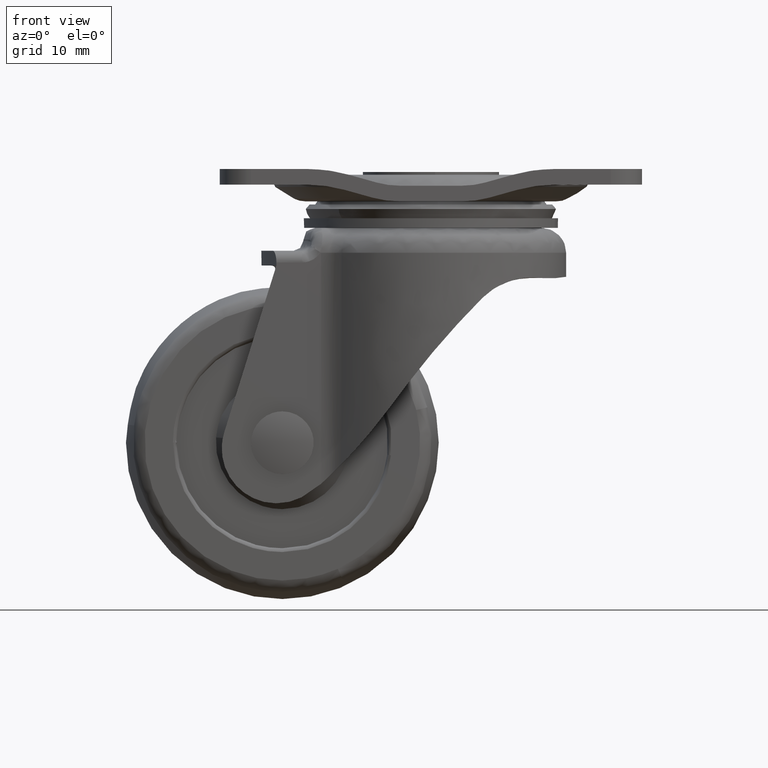
[diagram: clean part render]
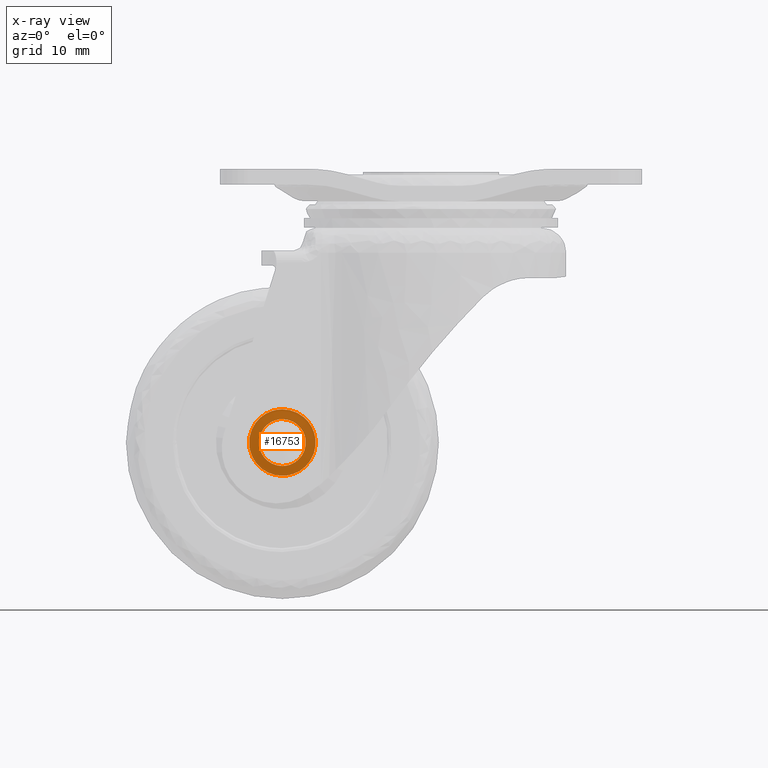
[diagram: x-ray — body ghosted, one internal face saturated and labeled with its STEP entity id]
A machine part, front view, then the same camera in x-ray: the body is ghosted and one INTERNAL B-rep face — a face not visible from any outside direction — is saturated and labeled: STEP entity #16753.
In plain terms, the highlighted face is a freeform B-spline surface patch.
Its self-contained STEP definition (entity closure, byte-faithful):
#16188=CARTESIAN_POINT('',(-14.779709512957730,12.000127047514820,-34.498539502680970));
#16189=VERTEX_POINT('',#16188);
#16195=CARTESIAN_POINT('',(-19.0,12.000127047514820,-39.250185000000101));
#16196=VERTEX_POINT('',#16195);
#16197=CARTESIAN_POINT('',(-14.779709512957735,12.000127047514823,-34.498539502680963));
#16198=CARTESIAN_POINT('',(-14.749999999999996,12.000127047514825,-34.748482491451284));
#16199=CARTESIAN_POINT('',(-14.750000000000000,12.000127047514820,-35.000185000000101));
#16200=CARTESIAN_POINT('',(-14.750000000000005,12.000127047514820,-39.250185000000094));
#16201=CARTESIAN_POINT('',(-19.0,12.000127047514820,-39.250185000000101));
#16209=(BOUNDED_CURVE()B_SPLINE_CURVE(2,(#16197,#16198,#16199,#16200,#16201),.UNSPECIFIED.,.F.,.U.)B_SPLINE_CURVE_WITH_KNOTS((3,2,3),(0.229562473513409,0.250000000000000,0.500000000000000),.UNSPECIFIED.)CURVE()GEOMETRIC_REPRESENTATION_ITEM()RATIONAL_B_SPLINE_CURVE((0.956026754183505,0.976055948331029,1.0,0.707106781186548,1.0))REPRESENTATION_ITEM(''));
#16210=EDGE_CURVE('',#16189,#16196,#16209,.T.);
#16212=CARTESIAN_POINT('',(-23.242072893291809,12.000127047514820,-35.259641293041533));
#16213=VERTEX_POINT('',#16212);
#16214=CARTESIAN_POINT('',(-19.0,12.000127047514820,-39.250185000000101));
#16215=CARTESIAN_POINT('',(-22.998000784314645,12.000127047514821,-39.250185000000101));
#16216=CARTESIAN_POINT('',(-23.242072893291816,12.000127047514821,-35.259641293041533));
#16224=(BOUNDED_CURVE()B_SPLINE_CURVE(2,(#16214,#16215,#16216),.UNSPECIFIED.,.F.,.U.)B_SPLINE_CURVE_WITH_KNOTS((3,3),(0.500000000000000,0.739332962240479),.UNSPECIFIED.)CURVE()GEOMETRIC_REPRESENTATION_ITEM()RATIONAL_B_SPLINE_CURVE((1.0,0.719603993284910,0.976072041670011))REPRESENTATION_ITEM(''));
#16225=EDGE_CURVE('',#16196,#16213,#16224,.T.);
#16299=CARTESIAN_POINT('',(-19.0,12.000127047514820,-30.750185000000101));
#16300=VERTEX_POINT('',#16299);
#16301=CARTESIAN_POINT('',(-23.242072893291812,12.000127047514823,-35.259641293041526));
#16302=CARTESIAN_POINT('',(-23.249999999999996,12.000127047514825,-35.130034244037446));
#16303=CARTESIAN_POINT('',(-23.250000000000000,12.000127047514820,-35.000185000000101));
#16304=CARTESIAN_POINT('',(-23.250000000000000,12.000127047514820,-30.750185000000101));
#16305=CARTESIAN_POINT('',(-19.0,12.000127047514820,-30.750185000000101));
#16313=(BOUNDED_CURVE()B_SPLINE_CURVE(2,(#16301,#16302,#16303,#16304,#16305),.UNSPECIFIED.,.F.,.U.)B_SPLINE_CURVE_WITH_KNOTS((3,2,3),(0.739332962240481,0.750000000000000,1.0),.UNSPECIFIED.)CURVE()GEOMETRIC_REPRESENTATION_ITEM()RATIONAL_B_SPLINE_CURVE((0.976072041670013,0.987502787901639,1.0,0.707106781186548,1.0))REPRESENTATION_ITEM(''));
#16314=EDGE_CURVE('',#16213,#16300,#16313,.T.);
#16316=CARTESIAN_POINT('',(-19.0,12.000127047514820,-30.750185000000101));
#16317=CARTESIAN_POINT('',(-15.225258264756963,12.000127047514820,-30.750185000000105));
#16318=CARTESIAN_POINT('',(-14.779709512957737,12.000127047514825,-34.498539502680963));
#16326=(BOUNDED_CURVE()B_SPLINE_CURVE(2,(#16316,#16317,#16318),.UNSPECIFIED.,.F.,.U.)B_SPLINE_CURVE_WITH_KNOTS((3,3),(0.0,0.229562473513409),.UNSPECIFIED.)CURVE()GEOMETRIC_REPRESENTATION_ITEM()RATIONAL_B_SPLINE_CURVE((1.0,0.731050832855519,0.956026754183505))REPRESENTATION_ITEM(''));
#16327=EDGE_CURVE('',#16300,#16189,#16326,.T.);
#16355=CARTESIAN_POINT('',(-16.020971420927321,12.000128485879619,-34.646082295875672));
#16356=VERTEX_POINT('',#16355);
#16357=CARTESIAN_POINT('',(-19.0,12.000128485879619,-38.000185000000101));
#16358=VERTEX_POINT('',#16357);
#16359=CARTESIAN_POINT('',(-16.020971420927332,12.000128485879625,-34.646082295875672));
#16360=CARTESIAN_POINT('',(-15.999999999999996,12.000128485879621,-34.822512640888583));
#16361=CARTESIAN_POINT('',(-16.0,12.000128485879619,-35.000185000000101));
#16362=CARTESIAN_POINT('',(-15.999999999999998,12.000128485879619,-38.000185000000101));
#16363=CARTESIAN_POINT('',(-19.0,12.000128485879619,-38.000185000000101));
#16371=(BOUNDED_CURVE()B_SPLINE_CURVE(2,(#16359,#16360,#16361,#16362,#16363),.UNSPECIFIED.,.F.,.U.)B_SPLINE_CURVE_WITH_KNOTS((3,2,3),(0.229562473498153,0.250000000000000,0.500000000000000),.UNSPECIFIED.)CURVE()GEOMETRIC_REPRESENTATION_ITEM()RATIONAL_B_SPLINE_CURVE((0.956026754153602,0.976055948313155,1.0,0.707106781186548,1.0))REPRESENTATION_ITEM(''));
#16372=EDGE_CURVE('',#16356,#16358,#16371,.T.);
#16413=CARTESIAN_POINT('',(-21.994404395253770,12.000128485879619,-35.183330618798053));
#16414=VERTEX_POINT('',#16413);
#16420=CARTESIAN_POINT('',(-19.0,12.000128485879619,-38.000185000000101));
#16421=CARTESIAN_POINT('',(-21.822118200351905,12.000128485879619,-38.000185000000116));
#16422=CARTESIAN_POINT('',(-21.994404395253778,12.000128485879616,-35.183330618798053));
#16430=(BOUNDED_CURVE()B_SPLINE_CURVE(2,(#16420,#16421,#16422),.UNSPECIFIED.,.F.,.U.)B_SPLINE_CURVE_WITH_KNOTS((3,3),(0.500000000000000,0.739332962219683),.UNSPECIFIED.)CURVE()GEOMETRIC_REPRESENTATION_ITEM()RATIONAL_B_SPLINE_CURVE((1.0,0.719603993309275,0.976072041625439))REPRESENTATION_ITEM(''));
#16431=EDGE_CURVE('',#16358,#16414,#16430,.T.);
#16454=CARTESIAN_POINT('',(-19.0,12.000128485879619,-32.000185000000087));
#16455=VERTEX_POINT('',#16454);
#16456=CARTESIAN_POINT('',(-19.0,12.000128485879619,-32.000185000000087));
#16457=CARTESIAN_POINT('',(-16.335476422423607,12.000128485879619,-32.000185000000094));
#16458=CARTESIAN_POINT('',(-16.020971420927328,12.000128485879621,-34.646082295875672));
#16466=(BOUNDED_CURVE()B_SPLINE_CURVE(2,(#16456,#16457,#16458),.UNSPECIFIED.,.F.,.U.)B_SPLINE_CURVE_WITH_KNOTS((3,3),(0.0,0.229562473498153),.UNSPECIFIED.)CURVE()GEOMETRIC_REPRESENTATION_ITEM()RATIONAL_B_SPLINE_CURVE((1.0,0.731050832873392,0.956026754153603))REPRESENTATION_ITEM(''));
#16467=EDGE_CURVE('',#16455,#16356,#16466,.T.);
#16469=CARTESIAN_POINT('',(-21.994404395253778,12.000128485879623,-35.183330618798060));
#16470=CARTESIAN_POINT('',(-22.0,12.000128485879616,-35.091843290089791));
#16471=CARTESIAN_POINT('',(-22.0,12.000128485879619,-35.000185000000101));
#16472=CARTESIAN_POINT('',(-22.000000000000007,12.000128485879619,-32.000185000000094));
#16473=CARTESIAN_POINT('',(-19.0,12.000128485879619,-32.000185000000087));
#16481=(BOUNDED_CURVE()B_SPLINE_CURVE(2,(#16469,#16470,#16471,#16472,#16473),.UNSPECIFIED.,.F.,.U.)B_SPLINE_CURVE_WITH_KNOTS((3,2,3),(0.739332962219682,0.750000000000000,1.0),.UNSPECIFIED.)CURVE()GEOMETRIC_REPRESENTATION_ITEM()RATIONAL_B_SPLINE_CURVE((0.976072041625439,0.987502787877272,1.0,0.707106781186548,1.0))REPRESENTATION_ITEM(''));
#16482=EDGE_CURVE('',#16414,#16455,#16481,.T.);
#16736=CARTESIAN_POINT('',(-23.674471413087009,12.000127766697220,-39.674757988727492));
#16737=CARTESIAN_POINT('',(-23.674471413087009,12.000127766697220,-30.325609883386889));
#16738=CARTESIAN_POINT('',(-14.325501684356571,12.000127766697220,-39.674757988727492));
#16739=CARTESIAN_POINT('',(-14.325501684356571,12.000127766697220,-30.325609883386889));
#16740=B_SPLINE_SURFACE_WITH_KNOTS('',1,1,((#16736,#16738),(#16737,#16739)),.UNSPECIFIED.,.F.,.F.,.U.,(2,2),(2,2),(0.0,9.349148105340603),(0.0,9.348969728730431),.UNSPECIFIED.);
#16741=ORIENTED_EDGE('',*,*,#16314,.F.);
#16742=ORIENTED_EDGE('',*,*,#16225,.F.);
#16743=ORIENTED_EDGE('',*,*,#16210,.F.);
#16744=ORIENTED_EDGE('',*,*,#16327,.F.);
#16745=EDGE_LOOP('',(#16741,#16742,#16743,#16744));
#16746=FACE_OUTER_BOUND('',#16745,.T.);
#16747=ORIENTED_EDGE('',*,*,#16431,.T.);
#16748=ORIENTED_EDGE('',*,*,#16482,.T.);
#16749=ORIENTED_EDGE('',*,*,#16467,.T.);
#16750=ORIENTED_EDGE('',*,*,#16372,.T.);
#16751=EDGE_LOOP('',(#16747,#16748,#16749,#16750));
#16752=FACE_BOUND('',#16751,.T.);
#16753=ADVANCED_FACE('',(#16746,#16752),#16740,.F.);